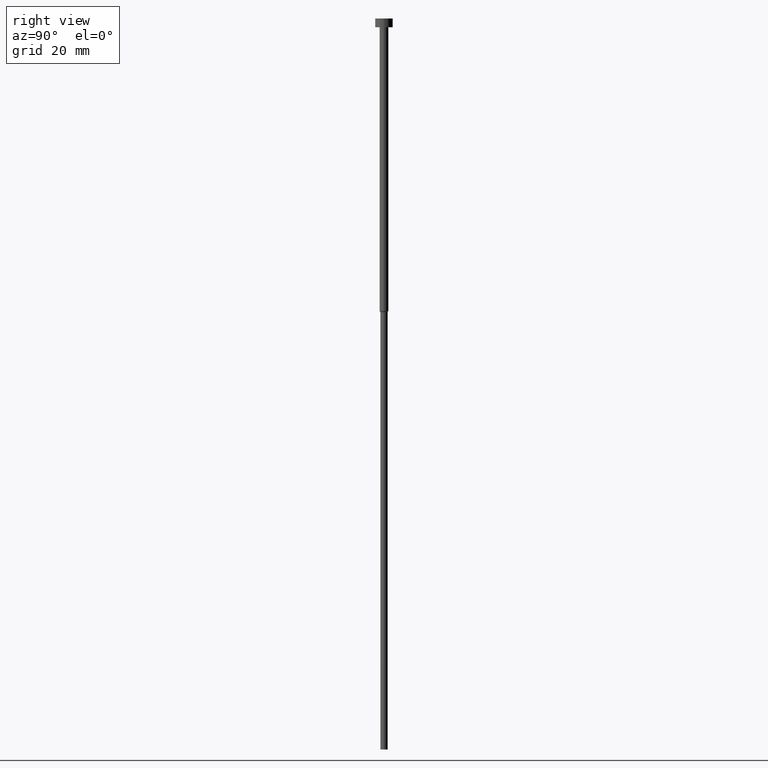
[diagram: clean part render]
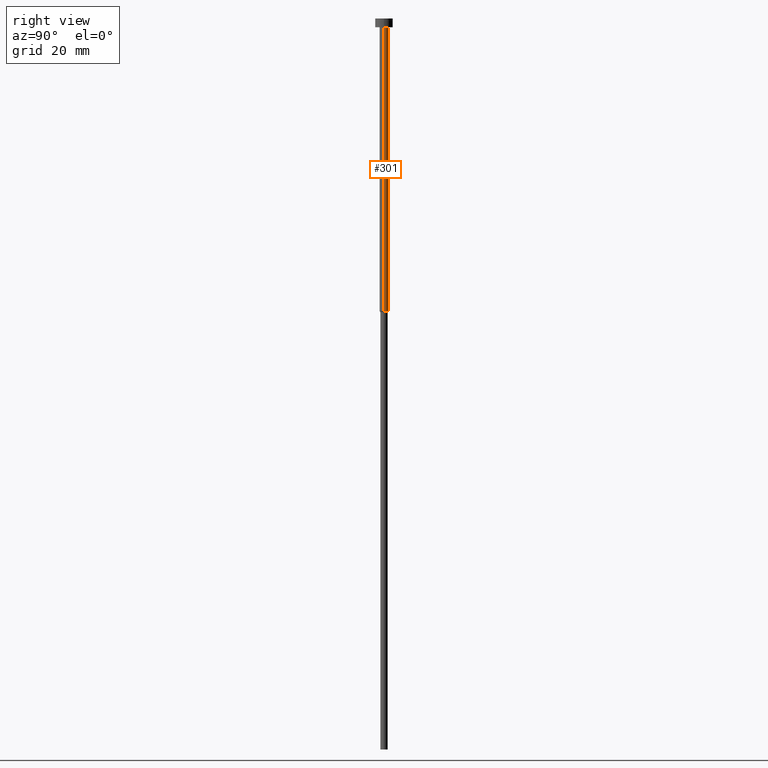
[diagram: same view with one face highlighted and labeled with its STEP entity id]
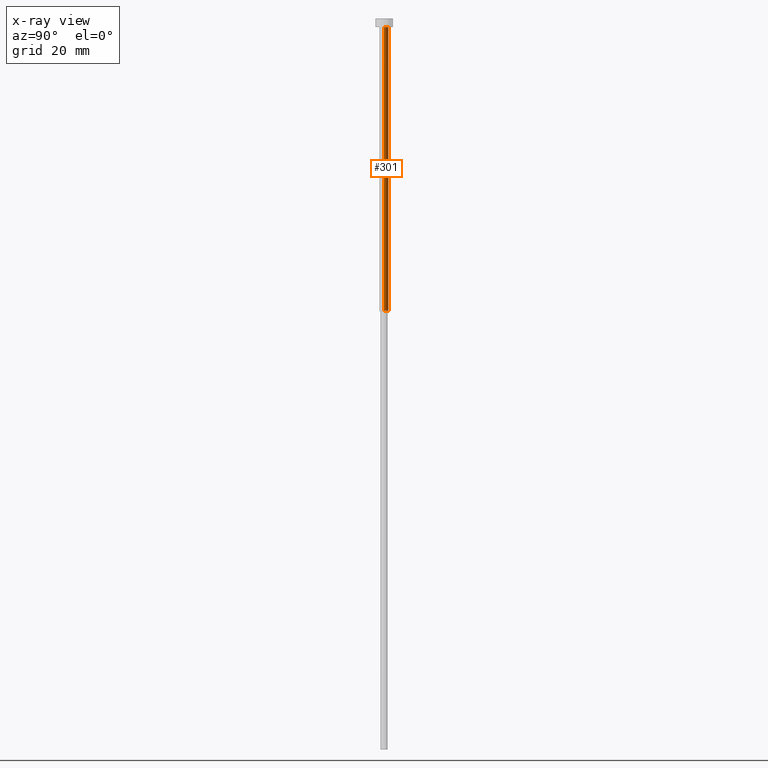
[diagram: x-ray of the same camera — body ghosted, the highlighted face saturated]
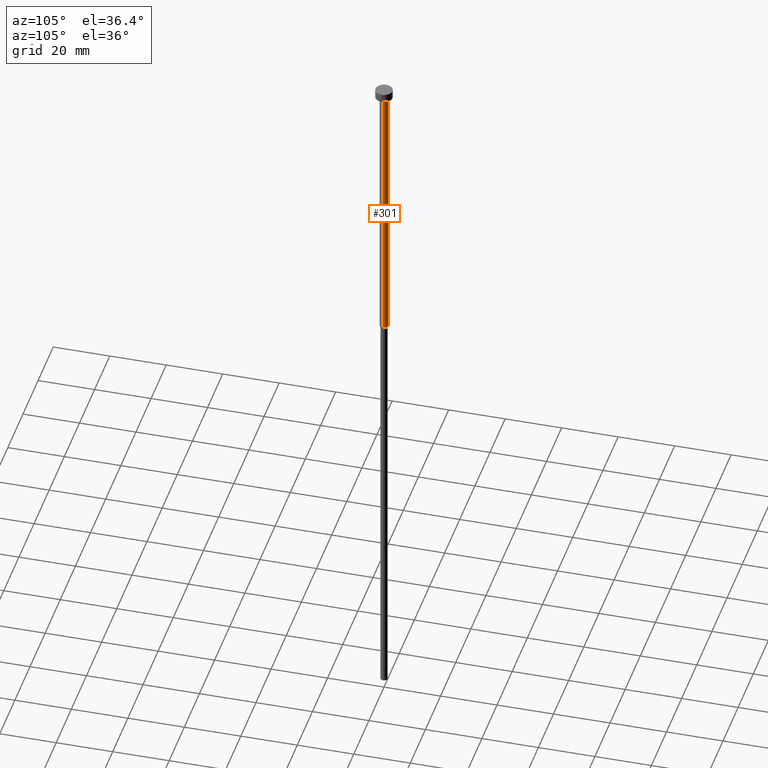
[diagram: same view with one face highlighted and labeled with its STEP entity id]
A machine part, right view. The second image highlights one B-rep face of the part: STEP entity #301.
The next image is the same camera in x-ray: the body ghosted, the highlighted face saturated — about 0% of this face is hidden behind the body in this view.
A second angle (auxiliary view) of the same face is appended — the face is thin or edge-on in the first view.
In plain terms, the highlighted cylindrical surface (edge-blend (fillet) strip) has radius 1.5 mm, axis along (-0, -0, 1).
Its self-contained STEP definition (entity closure, byte-faithful):
#1 = CARTESIAN_POINT ( 'NONE',  ( -1.500000000000000000, 1.836970198721029934E-16, 0.000000000000000000 ) ) ;
#9 = AXIS2_PLACEMENT_3D ( 'NONE', #149, #338, #210 ) ;
#11 = VECTOR ( 'NONE', #331, 1000.000000000000000 ) ;
#32 = CARTESIAN_POINT ( 'NONE',  ( 1.500000000000000000, 0.000000000000000000, -100.0000000000000000 ) ) ;
#34 = ORIENTED_EDGE ( 'NONE', *, *, #350, .T. ) ;
#50 = ORIENTED_EDGE ( 'NONE', *, *, #119, .F. ) ;
#56 = CIRCLE ( 'NONE', #9, 1.500000000000000000 ) ;
#64 = CARTESIAN_POINT ( 'NONE',  ( 1.500000000000000000, 0.000000000000000000, 0.000000000000000000 ) ) ;
#66 = LINE ( 'NONE', #1, #166 ) ;
#69 = EDGE_CURVE ( 'NONE', #316, #325, #168, .T. ) ;
#70 = CYLINDRICAL_SURFACE ( 'NONE', #109, 1.500000000000000000 ) ;
#78 = AXIS2_PLACEMENT_3D ( 'NONE', #224, #277, #326 ) ;
#91 = LINE ( 'NONE', #64, #11 ) ;
#93 = FACE_OUTER_BOUND ( 'NONE', #238, .T. ) ;
#98 = CARTESIAN_POINT ( 'NONE',  ( 0.000000000000000000, 0.000000000000000000, 0.000000000000000000 ) ) ;
#107 = ORIENTED_EDGE ( 'NONE', *, *, #340, .F. ) ;
#109 = AXIS2_PLACEMENT_3D ( 'NONE', #98, #337, #152 ) ;
#117 = DIRECTION ( 'NONE',  ( -0.000000000000000000, -0.000000000000000000, 1.000000000000000000 ) ) ;
#119 = EDGE_CURVE ( 'NONE', #316, #188, #91, .T. ) ;
#149 = CARTESIAN_POINT ( 'NONE',  ( 0.000000000000000000, 0.000000000000000000, -3.000000000000000888 ) ) ;
#152 = DIRECTION ( 'NONE',  ( 1.000000000000000000, 0.000000000000000000, 0.000000000000000000 ) ) ;
#157 = VERTEX_POINT ( 'NONE', #327 ) ;
#166 = VECTOR ( 'NONE', #117, 1000.000000000000000 ) ;
#168 = CIRCLE ( 'NONE', #78, 1.500000000000000000 ) ;
#182 = ORIENTED_EDGE ( 'NONE', *, *, #69, .T. ) ;
#188 = VERTEX_POINT ( 'NONE', #300 ) ;
#206 = CARTESIAN_POINT ( 'NONE',  ( -1.500000000000000000, 1.836970198721029934E-16, -100.0000000000000000 ) ) ;
#210 = DIRECTION ( 'NONE',  ( 1.000000000000000000, 0.000000000000000000, 0.000000000000000000 ) ) ;
#224 = CARTESIAN_POINT ( 'NONE',  ( 0.000000000000000000, 0.000000000000000000, -100.0000000000000000 ) ) ;
#238 = EDGE_LOOP ( 'NONE', ( #182, #34, #107, #50 ) ) ;
#277 = DIRECTION ( 'NONE',  ( -0.000000000000000000, -0.000000000000000000, 1.000000000000000000 ) ) ;
#300 = CARTESIAN_POINT ( 'NONE',  ( 1.500000000000000000, 0.000000000000000000, -3.000000000000000888 ) ) ;
#301 = ADVANCED_FACE ( 'NONE', ( #93 ), #70, .T. ) ;
#316 = VERTEX_POINT ( 'NONE', #32 ) ;
#325 = VERTEX_POINT ( 'NONE', #206 ) ;
#326 = DIRECTION ( 'NONE',  ( 1.000000000000000000, 0.000000000000000000, 0.000000000000000000 ) ) ;
#327 = CARTESIAN_POINT ( 'NONE',  ( -1.500000000000000000, 1.836970198721029934E-16, -3.000000000000000888 ) ) ;
#331 = DIRECTION ( 'NONE',  ( -0.000000000000000000, -0.000000000000000000, 1.000000000000000000 ) ) ;
#337 = DIRECTION ( 'NONE',  ( -0.000000000000000000, -0.000000000000000000, 1.000000000000000000 ) ) ;
#338 = DIRECTION ( 'NONE',  ( -0.000000000000000000, -0.000000000000000000, 1.000000000000000000 ) ) ;
#340 = EDGE_CURVE ( 'NONE', #188, #157, #56, .T. ) ;
#350 = EDGE_CURVE ( 'NONE', #325, #157, #66, .T. ) ;